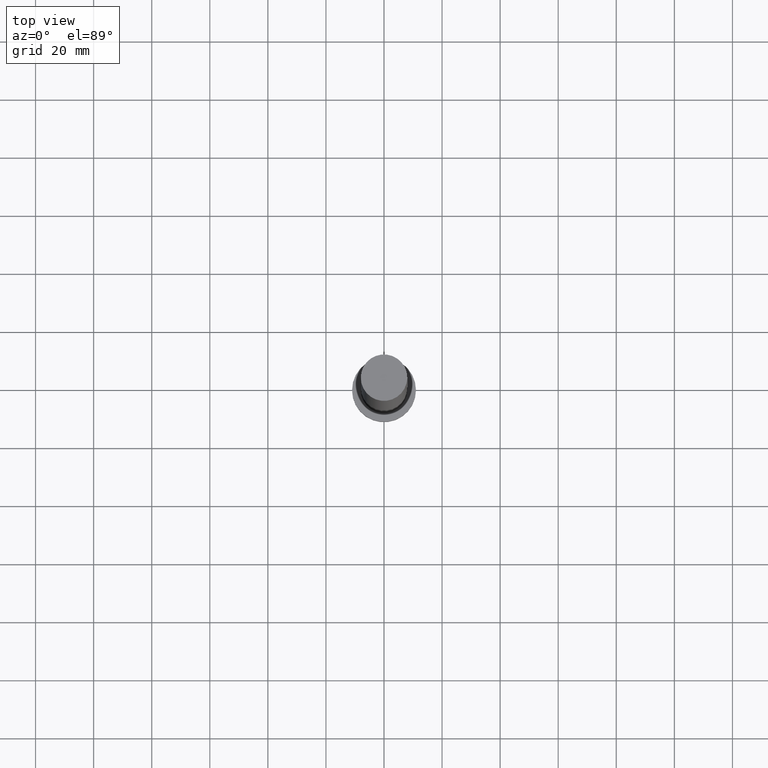
[diagram: clean part render]
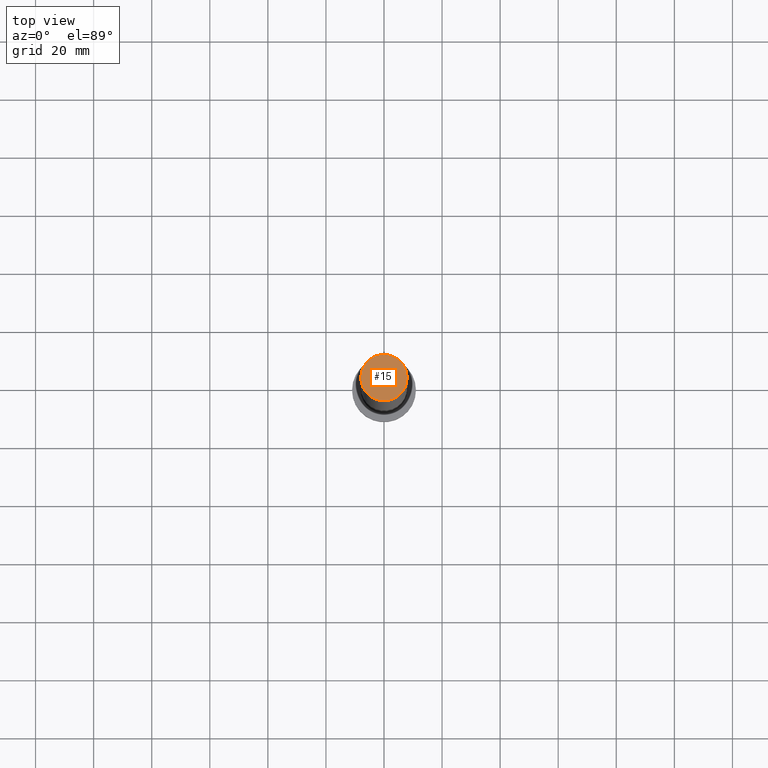
[diagram: same view with one face highlighted and labeled with its STEP entity id]
A machine part, top view. The second image highlights one B-rep face of the part: STEP entity #15.
In plain terms, the highlighted planar face has unit normal (0, 0, 1).
Its self-contained STEP definition (entity closure, byte-faithful):
#5 = CARTESIAN_POINT ( 'NONE',  ( -8.000000000000000000, 0.000000000000000000, 250.0000000000000000 ) ) ;
#8 = DIRECTION ( 'NONE',  ( 0.000000000000000000, 0.000000000000000000, 1.000000000000000000 ) ) ;
#9 = CIRCLE ( 'NONE', #163, 8.000000000000000000 ) ;
#15 = ADVANCED_FACE ( 'NONE', ( #84 ), #82, .T. ) ;
#27 = CARTESIAN_POINT ( 'NONE',  ( 0.000000000000000000, 0.000000000000000000, 250.0000000000000000 ) ) ;
#28 = EDGE_CURVE ( 'NONE', #105, #124, #9, .T. ) ;
#29 = CARTESIAN_POINT ( 'NONE',  ( 0.000000000000000000, 0.000000000000000000, 250.0000000000000000 ) ) ;
#30 = ORIENTED_EDGE ( 'NONE', *, *, #80, .T. ) ;
#46 = CARTESIAN_POINT ( 'NONE',  ( 0.000000000000000000, 0.000000000000000000, 250.0000000000000000 ) ) ;
#49 = AXIS2_PLACEMENT_3D ( 'NONE', #29, #128, #197 ) ;
#80 = EDGE_CURVE ( 'NONE', #124, #105, #176, .T. ) ;
#82 = PLANE ( 'NONE',  #49 ) ;
#84 = FACE_OUTER_BOUND ( 'NONE', #213, .T. ) ;
#105 = VERTEX_POINT ( 'NONE', #5 ) ;
#107 = DIRECTION ( 'NONE',  ( 1.000000000000000000, 0.000000000000000000, 0.000000000000000000 ) ) ;
#111 = DIRECTION ( 'NONE',  ( 0.000000000000000000, 0.000000000000000000, 1.000000000000000000 ) ) ;
#124 = VERTEX_POINT ( 'NONE', #167 ) ;
#128 = DIRECTION ( 'NONE',  ( 0.000000000000000000, 0.000000000000000000, 1.000000000000000000 ) ) ;
#149 = DIRECTION ( 'NONE',  ( 1.000000000000000000, 0.000000000000000000, 0.000000000000000000 ) ) ;
#163 = AXIS2_PLACEMENT_3D ( 'NONE', #27, #8, #107 ) ;
#167 = CARTESIAN_POINT ( 'NONE',  ( 8.000000000000000000, 9.797174393178825657E-16, 250.0000000000000000 ) ) ;
#176 = CIRCLE ( 'NONE', #198, 8.000000000000000000 ) ;
#197 = DIRECTION ( 'NONE',  ( 1.000000000000000000, 0.000000000000000000, -0.000000000000000000 ) ) ;
#198 = AXIS2_PLACEMENT_3D ( 'NONE', #46, #111, #149 ) ;
#213 = EDGE_LOOP ( 'NONE', ( #234, #30 ) ) ;
#234 = ORIENTED_EDGE ( 'NONE', *, *, #28, .T. ) ;